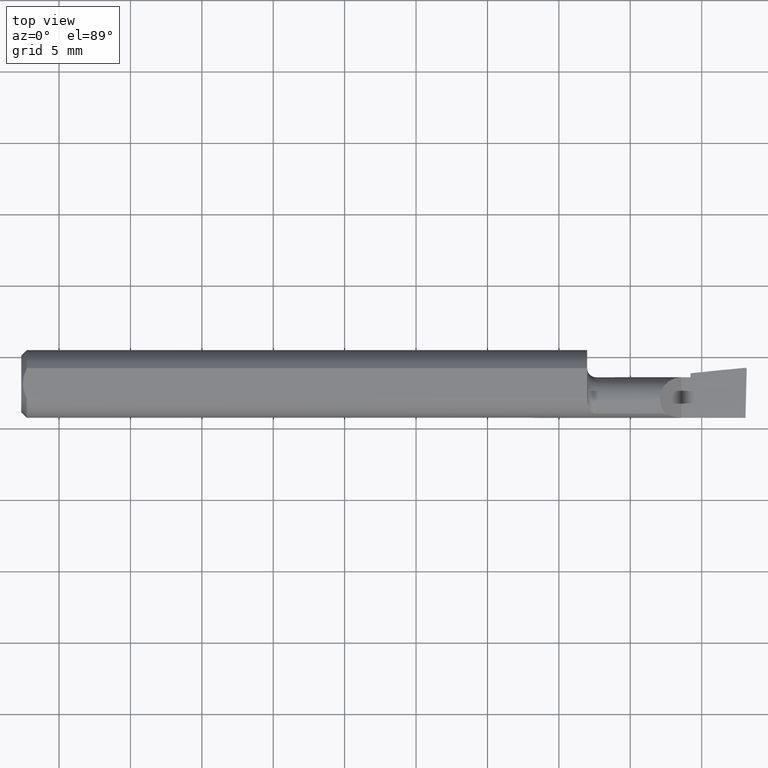
[diagram: clean part render]
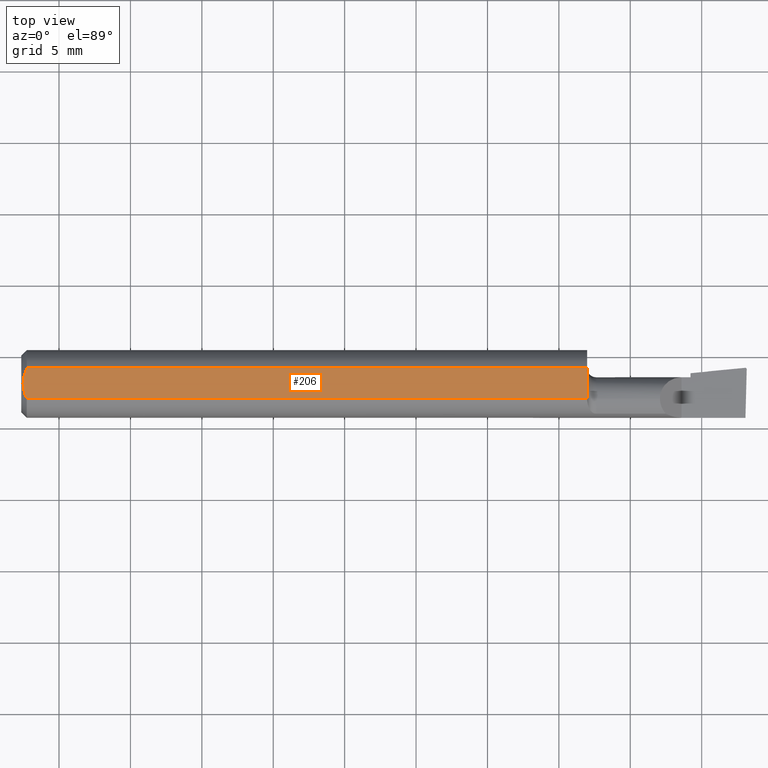
[diagram: same view with one face highlighted and labeled with its STEP entity id]
A machine part, top view. The second image highlights one B-rep face of the part: STEP entity #206.
In plain terms, the highlighted planar face has unit normal (0, 0, -1).
Its self-contained STEP definition (entity closure, byte-faithful):
#11 = ORIENTED_EDGE ( 'NONE', *, *, #1101, .T. ) ;
#16 = DIRECTION ( 'NONE',  ( 1.000000000000000000, 0.000000000000000000, 0.000000000000000000 ) ) ;
#25 = CARTESIAN_POINT ( 'NONE',  ( 0.01203159747439015714, 0.03549478314559913888, 0.08360000000000000764 ) ) ;
#47 = B_SPLINE_CURVE_WITH_KNOTS ( 'NONE', 3,
 ( #215, #581, #1093, #702 ),
 .UNSPECIFIED., .F., .F.,
 ( 4, 4 ),
 ( 1.257626766336316823E-05, 0.0004028128090563763697 ),
 .UNSPECIFIED. ) ;
#54 = VERTEX_POINT ( 'NONE', #964 ) ;
#75 = VERTEX_POINT ( 'NONE', #384 ) ;
#83 = CARTESIAN_POINT ( 'NONE',  ( 2.000000000000000000, -0.04209513035969836975, 0.08360000000000000764 ) ) ;
#105 = CARTESIAN_POINT ( 'NONE',  ( 0.01499999999997129151, -0.04209513035984148444, 0.08360000000000000764 ) ) ;
#106 = ORIENTED_EDGE ( 'NONE', *, *, #754, .F. ) ;
#157 = DIRECTION ( 'NONE',  ( -0.000000000000000000, 0.000000000000000000, -1.000000000000000000 ) ) ;
#171 = DIRECTION ( 'NONE',  ( -1.000000000000000000, -0.000000000000000000, -0.000000000000000000 ) ) ;
#177 = ORIENTED_EDGE ( 'NONE', *, *, #807, .T. ) ;
#206 = ADVANCED_FACE ( 'NONE', ( #1174 ), #1066, .F. ) ;
#215 = CARTESIAN_POINT ( 'NONE',  ( 1.560039230781083308, -0.04159999999999999809, 0.08360000000000000764 ) ) ;
#234 = CARTESIAN_POINT ( 'NONE',  ( 1.560000000000000053, 0.04793338999999998545, 0.08360000000000000764 ) ) ;
#239 = B_SPLINE_CURVE_WITH_KNOTS ( 'NONE', 3,
 ( #1115, #25, #457, #728, #916, #825 ),
 .UNSPECIFIED., .F., .F.,
 ( 4, 2, 4 ),
 ( 0.001498230153270103992, 0.002046825164355056854, 0.002595420175440009934 ),
 .UNSPECIFIED. ) ;
#254 = VECTOR ( 'NONE', #16, 39.37007874015748143 ) ;
#273 = CARTESIAN_POINT ( 'NONE',  ( 0.009483685532750025030, -0.02856415438847178384, 0.08359999999999997988 ) ) ;
#282 = VECTOR ( 'NONE', #766, 39.37007874015748143 ) ;
#332 = LINE ( 'NONE', #83, #974 ) ;
#354 = CARTESIAN_POINT ( 'NONE',  ( 0.004999999999999764182, 1.023804700932481731E-17, 0.08360000000000000764 ) ) ;
#384 = CARTESIAN_POINT ( 'NONE',  ( 0.004999999999999764182, 1.023804700932481731E-17, 0.08360000000000000764 ) ) ;
#389 = CARTESIAN_POINT ( 'NONE',  ( 1.560039148586933377, -0.04209513035969836975, 0.08360000000000000764 ) ) ;
#400 = ORIENTED_EDGE ( 'NONE', *, *, #1145, .T. ) ;
#412 = CARTESIAN_POINT ( 'NONE',  ( 1.560039230781083308, -0.04159999999999999809, 0.08360000000000000764 ) ) ;
#457 = CARTESIAN_POINT ( 'NONE',  ( 0.009483687754783748716, 0.02856776309113263912, 0.08360000000000000764 ) ) ;
#460 = EDGE_LOOP ( 'NONE', ( #106, #679, #400, #11, #1084, #468, #177 ) ) ;
#468 = ORIENTED_EDGE ( 'NONE', *, *, #854, .T. ) ;
#481 = CARTESIAN_POINT ( 'NONE',  ( 1.560000000000000053, -0.02623640667031312823, 0.08360000000000000764 ) ) ;
#502 = CARTESIAN_POINT ( 'NONE',  ( 0.000000000000000000, 0.04793338999999998545, 0.08360000000000000764 ) ) ;
#525 = CARTESIAN_POINT ( 'NONE',  ( 1.560039230781083308, -0.04159999999999999809, 0.08360000000000000764 ) ) ;
#532 = VERTEX_POINT ( 'NONE', #389 ) ;
#539 = CARTESIAN_POINT ( 'NONE',  ( 0.004999999999999755508, -0.007340015043780881779, 0.08360000000000000764 ) ) ;
#555 = VERTEX_POINT ( 'NONE', #877 ) ;
#570 = CARTESIAN_POINT ( 'NONE',  ( 1.560039203353752013, -0.04193008691327816673, 0.08360000000000000764 ) ) ;
#581 = CARTESIAN_POINT ( 'NONE',  ( 1.560039230781083308, -0.03647878552756408932, 0.08360000000000000764 ) ) ;
#653 = CARTESIAN_POINT ( 'NONE',  ( 1.560039148586933377, -0.04209513035969836975, 0.08360000000000000764 ) ) ;
#659 = VERTEX_POINT ( 'NONE', #760 ) ;
#663 = LINE ( 'NONE', #726, #254 ) ;
#679 = ORIENTED_EDGE ( 'NONE', *, *, #821, .F. ) ;
#698 = VERTEX_POINT ( 'NONE', #481 ) ;
#702 = CARTESIAN_POINT ( 'NONE',  ( 1.560000000000000053, -0.02623640667031312823, 0.08360000000000000764 ) ) ;
#726 = CARTESIAN_POINT ( 'NONE',  ( 2.000000000000000000, 0.04209513035969836975, 0.08360000000000000764 ) ) ;
#728 = CARTESIAN_POINT ( 'NONE',  ( 0.005976064474242441006, 0.01450833282979355383, 0.08359999999999997988 ) ) ;
#729 = B_SPLINE_CURVE_WITH_KNOTS ( 'NONE', 3,
 ( #354, #539, #837, #273, #830, #105 ),
 .UNSPECIFIED., .F., .F.,
 ( 4, 2, 4 ),
 ( 0.002595420175440009934, 0.003143963582281759320, 0.003692506989123508707 ),
 .UNSPECIFIED. ) ;
#754 = EDGE_CURVE ( 'NONE', #54, #698, #859, .T. ) ;
#760 = CARTESIAN_POINT ( 'NONE',  ( 0.01499999999999997689, 0.04209513035969836975, 0.08360000000000000764 ) ) ;
#766 = DIRECTION ( 'NONE',  ( 0.000000000000000000, -1.000000000000000000, 0.000000000000000000 ) ) ;
#807 = EDGE_CURVE ( 'NONE', #875, #698, #47, .T. ) ;
#821 = EDGE_CURVE ( 'NONE', #659, #54, #663, .T. ) ;
#825 = CARTESIAN_POINT ( 'NONE',  ( 0.004999999999999764182, 1.023804700932481731E-17, 0.08360000000000000764 ) ) ;
#830 = CARTESIAN_POINT ( 'NONE',  ( 0.01202468825749101675, -0.03547942025930521381, 0.08360000000000000764 ) ) ;
#837 = CARTESIAN_POINT ( 'NONE',  ( 0.005981945000908218610, -0.01453549720624412039, 0.08360000000000000764 ) ) ;
#854 = EDGE_CURVE ( 'NONE', #532, #875, #1166, .T. ) ;
#859 = LINE ( 'NONE', #234, #282 ) ;
#864 = EDGE_CURVE ( 'NONE', #532, #555, #332, .T. ) ;
#875 = VERTEX_POINT ( 'NONE', #525 ) ;
#877 = CARTESIAN_POINT ( 'NONE',  ( 0.01499999999997129151, -0.04209513035984148444, 0.08360000000000000764 ) ) ;
#916 = CARTESIAN_POINT ( 'NONE',  ( 0.004999999999999758978, 0.007340705555993276045, 0.08360000000000000764 ) ) ;
#964 = CARTESIAN_POINT ( 'NONE',  ( 1.560000000000000053, 0.04209513035969836975, 0.08360000000000000764 ) ) ;
#974 = VECTOR ( 'NONE', #171, 39.37007874015748143 ) ;
#990 = CARTESIAN_POINT ( 'NONE',  ( 1.560039230781083308, -0.04176504345550688391, 0.08360000000000000764 ) ) ;
#994 = AXIS2_PLACEMENT_3D ( 'NONE', #502, #157, #1082 ) ;
#1066 = PLANE ( 'NONE',  #994 ) ;
#1082 = DIRECTION ( 'NONE',  ( -1.000000000000000000, 0.000000000000000000, 0.000000000000000000 ) ) ;
#1084 = ORIENTED_EDGE ( 'NONE', *, *, #864, .F. ) ;
#1093 = CARTESIAN_POINT ( 'NONE',  ( 1.560000000000000053, -0.03135762114274904394, 0.08360000000000000764 ) ) ;
#1101 = EDGE_CURVE ( 'NONE', #75, #555, #729, .T. ) ;
#1115 = CARTESIAN_POINT ( 'NONE',  ( 0.01499999999999997689, 0.04209513035969836975, 0.08360000000000000764 ) ) ;
#1145 = EDGE_CURVE ( 'NONE', #659, #75, #239, .T. ) ;
#1166 = B_SPLINE_CURVE_WITH_KNOTS ( 'NONE', 3,
 ( #653, #570, #990, #412 ),
 .UNSPECIFIED., .F., .F.,
 ( 4, 4 ),
 ( 4.336808689942017255E-19, 1.257626766336316823E-05 ),
 .UNSPECIFIED. ) ;
#1174 = FACE_OUTER_BOUND ( 'NONE', #460, .T. ) ;